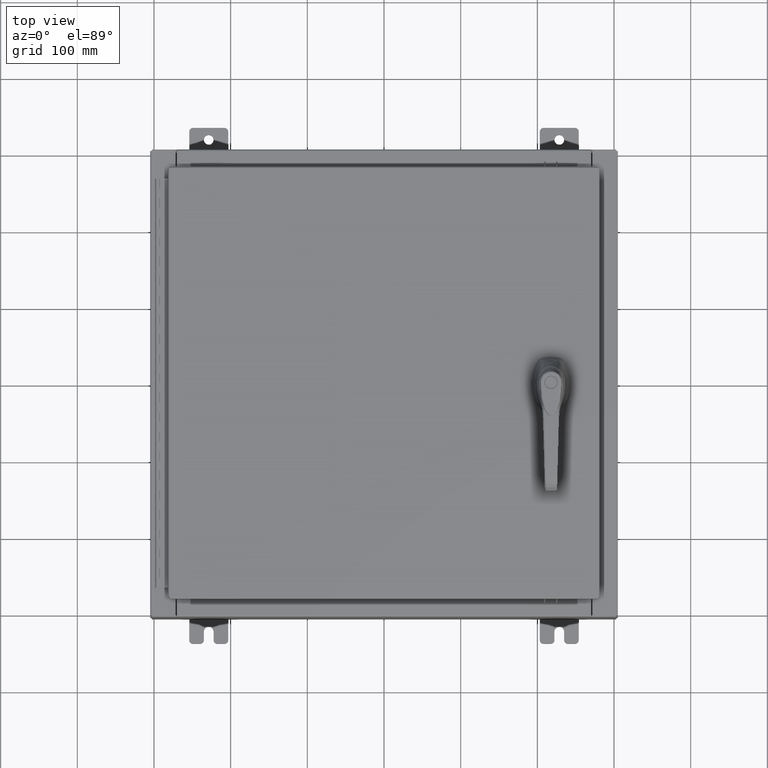
[diagram: clean part render]
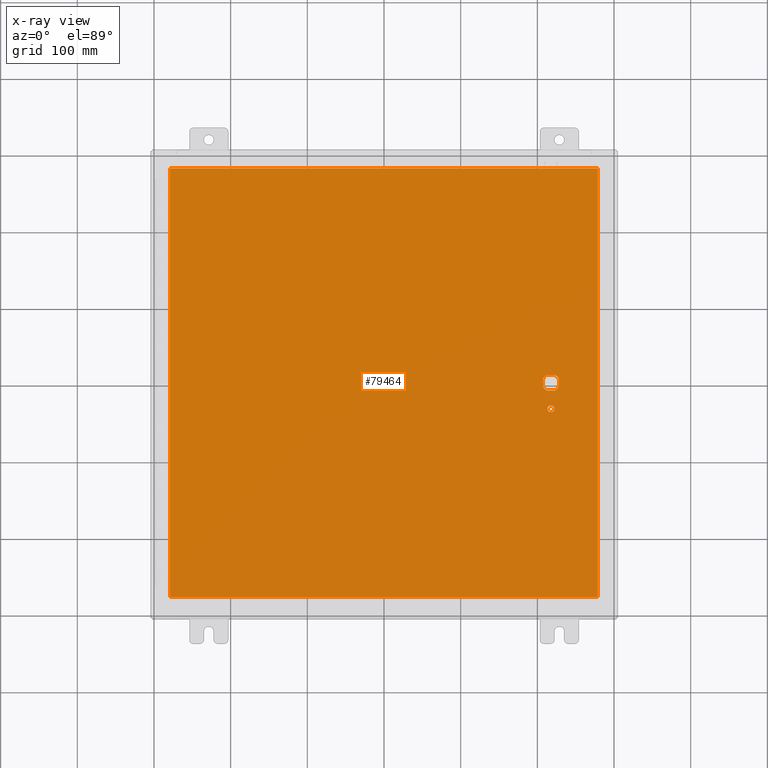
[diagram: x-ray — body ghosted, one internal face saturated and labeled with its STEP entity id]
A machine part, top view, then the same camera in x-ray: the body is ghosted and one INTERNAL B-rep face — a face not visible from any outside direction — is saturated and labeled: STEP entity #79464.
In plain terms, the highlighted planar face has unit normal (0, 0, -1).
Its self-contained STEP definition (entity closure, byte-faithful):
#1363 = CIRCLE ( 'NONE', #89930, 0.1715000000000011500 ) ;
#2174 = AXIS2_PLACEMENT_3D ( 'NONE', #96787, #44281, #105591 ) ;
#3021 = DIRECTION ( 'NONE',  ( -1.000000000000000000, 0.0000000000000000000, 0.0000000000000000000 ) ) ;
#3284 = CARTESIAN_POINT ( 'NONE',  ( 0.0000000000000000000, 0.0000000000000000000, -0.07470000000000000300 ) ) ;
#3557 = CARTESIAN_POINT ( 'NONE',  ( 8.175000000000070000, 0.2002273707563080300, -0.07470000000000003000 ) ) ;
#3602 = DIRECTION ( 'NONE',  ( 1.000000000000000000, 0.0000000000000000000, 0.0000000000000000000 ) ) ;
#4237 = LINE ( 'NONE', #38163, #71463 ) ;
#4667 = EDGE_CURVE ( 'NONE', #100398, #92167, #40274, .T. ) ;
#9254 = DIRECTION ( 'NONE',  ( -0.0000000000000000000, -0.0000000000000000000, 1.000000000000000000 ) ) ;
#9924 = VERTEX_POINT ( 'NONE', #111456 ) ;
#12310 = VECTOR ( 'NONE', #34698, 39.37007874015748100 ) ;
#12706 = CARTESIAN_POINT ( 'NONE',  ( 8.577999999999995900, 0.0000000000000000000, -0.07470000000000003000 ) ) ;
#15179 = AXIS2_PLACEMENT_3D ( 'NONE', #79299, #26757, #88127 ) ;
#15334 = AXIS2_PLACEMENT_3D ( 'NONE', #70950, #18474, #79820 ) ;
#15506 = LINE ( 'NONE', #55528, #59388 ) ;
#15774 = EDGE_CURVE ( 'NONE', #69844, #43508, #4237, .T. ) ;
#17152 = ORIENTED_EDGE ( 'NONE', *, *, #99710, .T. ) ;
#18474 = DIRECTION ( 'NONE',  ( -0.0000000000000000000, -0.0000000000000000000, 1.000000000000000000 ) ) ;
#20132 = LINE ( 'NONE', #36809, #64003 ) ;
#21036 = CARTESIAN_POINT ( 'NONE',  ( 10.99029999999999800, 11.00629999999999600, -0.07470000000000019700 ) ) ;
#21438 = EDGE_CURVE ( 'NONE', #66461, #93129, #98462, .T. ) ;
#21518 = DIRECTION ( 'NONE',  ( -1.000000000000000000, 1.776356839400251300E-015, 0.0000000000000000000 ) ) ;
#22375 = EDGE_CURVE ( 'NONE', #44950, #51767, #20132, .T. ) ;
#22784 = VECTOR ( 'NONE', #39405, 39.37007874015748100 ) ;
#26669 = EDGE_CURVE ( 'NONE', #77998, #58202, #15506, .T. ) ;
#26757 = DIRECTION ( 'NONE',  ( -0.0000000000000000000, -0.0000000000000000000, 1.000000000000000000 ) ) ;
#27270 = CARTESIAN_POINT ( 'NONE',  ( 8.577999999999995900, 0.0000000000000000000, -0.07470000000000003000 ) ) ;
#28232 = CARTESIAN_POINT ( 'NONE',  ( 8.980999999999921700, 0.2002273707563080300, -0.07470000000000003000 ) ) ;
#29776 = PLANE ( 'NONE',  #69955 ) ;
#30705 = ORIENTED_EDGE ( 'NONE', *, *, #26669, .T. ) ;
#31484 = CIRCLE ( 'NONE', #83237, 0.4499999999999156900 ) ;
#31684 = EDGE_CURVE ( 'NONE', #51767, #100398, #50081, .T. ) ;
#34209 = FACE_BOUND ( 'NONE', #82321, .T. ) ;
#34698 = DIRECTION ( 'NONE',  ( 2.728745808672812900E-015, -1.000000000000000000, 0.0000000000000000000 ) ) ;
#36101 = DIRECTION ( 'NONE',  ( -1.000000000000000000, 0.0000000000000000000, 0.0000000000000000000 ) ) ;
#36809 = CARTESIAN_POINT ( 'NONE',  ( -10.99030000000000000, -11.00630000000000100, -0.07470000000000019700 ) ) ;
#37017 = EDGE_CURVE ( 'NONE', #82015, #77301, #82297, .T. ) ;
#38163 = CARTESIAN_POINT ( 'NONE',  ( 0.0000000000000000000, -0.4029999999999252000, -0.07470000000000003000 ) ) ;
#38592 = DIRECTION ( 'NONE',  ( 0.0000000000000000000, 0.0000000000000000000, -1.000000000000000000 ) ) ;
#38791 = EDGE_CURVE ( 'NONE', #43508, #77301, #31484, .T. ) ;
#39405 = DIRECTION ( 'NONE',  ( 0.0000000000000000000, -1.000000000000000000, 0.0000000000000000000 ) ) ;
#40274 = LINE ( 'NONE', #21036, #81437 ) ;
#43508 = VERTEX_POINT ( 'NONE', #98773 ) ;
#43713 = CIRCLE ( 'NONE', #2174, 0.1715000000000011500 ) ;
#43893 = CIRCLE ( 'NONE', #15179, 0.4499999999999156900 ) ;
#44281 = DIRECTION ( 'NONE',  ( -0.0000000000000000000, -0.0000000000000000000, 1.000000000000000000 ) ) ;
#44950 = VERTEX_POINT ( 'NONE', #102664 ) ;
#45984 = ORIENTED_EDGE ( 'NONE', *, *, #37017, .F. ) ;
#46007 = CARTESIAN_POINT ( 'NONE',  ( 10.99029999999999600, 11.00629999999999600, -0.07470000000000000300 ) ) ;
#46154 = LINE ( 'NONE', #66955, #22784 ) ;
#47964 = CARTESIAN_POINT ( 'NONE',  ( 8.778227370756305000, 0.4029999999999250300, -0.07470000000000003000 ) ) ;
#50081 = LINE ( 'NONE', #94289, #52875 ) ;
#51767 = VERTEX_POINT ( 'NONE', #103838 ) ;
#52875 = VECTOR ( 'NONE', #85494, 39.37007874015748100 ) ;
#53767 = ORIENTED_EDGE ( 'NONE', *, *, #83720, .F. ) ;
#55528 = CARTESIAN_POINT ( 'NONE',  ( 0.0000000000000000000, 0.4029999999999252000, -0.07470000000000003000 ) ) ;
#57349 = CARTESIAN_POINT ( 'NONE',  ( 8.377772629243686700, 0.4029999999999252000, -0.07470000000000003000 ) ) ;
#58107 = CARTESIAN_POINT ( 'NONE',  ( 8.749499999999997600, -1.338000000000000100, -0.07470000000000003000 ) ) ;
#58202 = VERTEX_POINT ( 'NONE', #57349 ) ;
#59388 = VECTOR ( 'NONE', #3021, 39.37007874015748100 ) ;
#60198 = FACE_BOUND ( 'NONE', #113657, .T. ) ;
#60201 = ORIENTED_EDGE ( 'NONE', *, *, #68866, .T. ) ;
#61448 = CARTESIAN_POINT ( 'NONE',  ( 8.175000000000070000, 0.0000000000000000000, -0.07470000000000003000 ) ) ;
#61730 = CARTESIAN_POINT ( 'NONE',  ( 8.577999999999995900, -1.338000000000000100, -0.07470000000000003000 ) ) ;
#64003 = VECTOR ( 'NONE', #106526, 39.37007874015748100 ) ;
#64633 = ORIENTED_EDGE ( 'NONE', *, *, #86969, .T. ) ;
#65694 = AXIS2_PLACEMENT_3D ( 'NONE', #27270, #88618, #36101 ) ;
#66461 = VERTEX_POINT ( 'NONE', #3557 ) ;
#66955 = CARTESIAN_POINT ( 'NONE',  ( -10.99030000000000500, 11.00629999999999600, -0.07470000000000133500 ) ) ;
#67642 = EDGE_CURVE ( 'NONE', #83653, #9924, #1363, .T. ) ;
#68866 = EDGE_CURVE ( 'NONE', #82015, #77998, #101301, .T. ) ;
#69747 = CIRCLE ( 'NONE', #15334, 0.4499999999999156900 ) ;
#69844 = VERTEX_POINT ( 'NONE', #110439 ) ;
#69955 = AXIS2_PLACEMENT_3D ( 'NONE', #3284, #38592, #99895 ) ;
#70557 = DIRECTION ( 'NONE',  ( -1.000000000000000000, 0.0000000000000000000, 0.0000000000000000000 ) ) ;
#70890 = CARTESIAN_POINT ( 'NONE',  ( 8.175000000000070000, -0.2002273707563079800, -0.07470000000000003000 ) ) ;
#70950 = CARTESIAN_POINT ( 'NONE',  ( 8.577999999999995900, 0.0000000000000000000, -0.07470000000000003000 ) ) ;
#71463 = VECTOR ( 'NONE', #3602, 39.37007874015748100 ) ;
#74038 = DIRECTION ( 'NONE',  ( -0.0000000000000000000, -0.0000000000000000000, 1.000000000000000000 ) ) ;
#77301 = VERTEX_POINT ( 'NONE', #100746 ) ;
#77998 = VERTEX_POINT ( 'NONE', #47964 ) ;
#78371 = CARTESIAN_POINT ( 'NONE',  ( 8.980999999999921700, 2.450686610769031800E-014, -0.07470000000000003000 ) ) ;
#78373 = ORIENTED_EDGE ( 'NONE', *, *, #15774, .T. ) ;
#79299 = CARTESIAN_POINT ( 'NONE',  ( 8.577999999999995900, 0.0000000000000000000, -0.07470000000000003000 ) ) ;
#79464 = ADVANCED_FACE ( 'NONE', ( #60198, #80797, #34209 ), #29776, .T. ) ;
#79820 = DIRECTION ( 'NONE',  ( -1.000000000000000000, 0.0000000000000000000, 0.0000000000000000000 ) ) ;
#80797 = FACE_OUTER_BOUND ( 'NONE', #89039, .T. ) ;
#81437 = VECTOR ( 'NONE', #108439, 39.37007874015748100 ) ;
#82015 = VERTEX_POINT ( 'NONE', #28232 ) ;
#82297 = LINE ( 'NONE', #78371, #12310 ) ;
#82321 = EDGE_LOOP ( 'NONE', ( #91992, #45984, #60201, #30705, #92809, #104386, #64633, #78373 ) ) ;
#83237 = AXIS2_PLACEMENT_3D ( 'NONE', #12706, #74038, #21518 ) ;
#83653 = VERTEX_POINT ( 'NONE', #58107 ) ;
#83720 = EDGE_CURVE ( 'NONE', #92167, #44950, #46154, .T. ) ;
#85494 = DIRECTION ( 'NONE',  ( 0.0000000000000000000, 1.000000000000000000, 0.0000000000000000000 ) ) ;
#85780 = ORIENTED_EDGE ( 'NONE', *, *, #22375, .F. ) ;
#86969 = EDGE_CURVE ( 'NONE', #93129, #69844, #43893, .T. ) ;
#87963 = DIRECTION ( 'NONE',  ( 0.0000000000000000000, -1.000000000000000000, 0.0000000000000000000 ) ) ;
#88127 = DIRECTION ( 'NONE',  ( -1.000000000000000000, 8.881784197001256300E-016, 0.0000000000000000000 ) ) ;
#88618 = DIRECTION ( 'NONE',  ( -0.0000000000000000000, -0.0000000000000000000, 1.000000000000000000 ) ) ;
#89039 = EDGE_LOOP ( 'NONE', ( #109160, #85780, #53767, #101711 ) ) ;
#89930 = AXIS2_PLACEMENT_3D ( 'NONE', #61730, #9254, #70557 ) ;
#90144 = EDGE_CURVE ( 'NONE', #58202, #66461, #69747, .T. ) ;
#91015 = CARTESIAN_POINT ( 'NONE',  ( -10.99030000000000100, 11.00629999999999600, -0.07470000000000000300 ) ) ;
#91992 = ORIENTED_EDGE ( 'NONE', *, *, #38791, .T. ) ;
#92167 = VERTEX_POINT ( 'NONE', #91015 ) ;
#92809 = ORIENTED_EDGE ( 'NONE', *, *, #90144, .T. ) ;
#93129 = VERTEX_POINT ( 'NONE', #70890 ) ;
#94289 = CARTESIAN_POINT ( 'NONE',  ( 10.99029999999999600, -11.00630000000000100, -0.07470000000000019700 ) ) ;
#94847 = ORIENTED_EDGE ( 'NONE', *, *, #67642, .T. ) ;
#95734 = VECTOR ( 'NONE', #87963, 39.37007874015748100 ) ;
#96787 = CARTESIAN_POINT ( 'NONE',  ( 8.577999999999995900, -1.338000000000000100, -0.07470000000000003000 ) ) ;
#98462 = LINE ( 'NONE', #61448, #95734 ) ;
#98773 = CARTESIAN_POINT ( 'NONE',  ( 8.778227370756305000, -0.4029999999999252000, -0.07470000000000003000 ) ) ;
#99710 = EDGE_CURVE ( 'NONE', #9924, #83653, #43713, .T. ) ;
#99895 = DIRECTION ( 'NONE',  ( -1.000000000000000000, 0.0000000000000000000, -0.0000000000000000000 ) ) ;
#100398 = VERTEX_POINT ( 'NONE', #46007 ) ;
#100746 = CARTESIAN_POINT ( 'NONE',  ( 8.980999999999921700, -0.2002273707563075900, -0.07470000000000003000 ) ) ;
#101301 = CIRCLE ( 'NONE', #65694, 0.4499999999999156900 ) ;
#101711 = ORIENTED_EDGE ( 'NONE', *, *, #4667, .F. ) ;
#102664 = CARTESIAN_POINT ( 'NONE',  ( -10.99030000000000000, -11.00630000000000100, -0.07470000000000000300 ) ) ;
#103838 = CARTESIAN_POINT ( 'NONE',  ( 10.99029999999999600, -11.00630000000000100, -0.07470000000000000300 ) ) ;
#104386 = ORIENTED_EDGE ( 'NONE', *, *, #21438, .T. ) ;
#105591 = DIRECTION ( 'NONE',  ( -1.000000000000000000, 0.0000000000000000000, 0.0000000000000000000 ) ) ;
#106526 = DIRECTION ( 'NONE',  ( 1.000000000000000000, -0.0000000000000000000, -0.0000000000000000000 ) ) ;
#108439 = DIRECTION ( 'NONE',  ( -1.000000000000000000, -0.0000000000000000000, -0.0000000000000000000 ) ) ;
#109160 = ORIENTED_EDGE ( 'NONE', *, *, #31684, .F. ) ;
#110439 = CARTESIAN_POINT ( 'NONE',  ( 8.377772629243686700, -0.4029999999999250300, -0.07470000000000003000 ) ) ;
#111456 = CARTESIAN_POINT ( 'NONE',  ( 8.406499999999994100, -1.338000000000000100, -0.07470000000000003000 ) ) ;
#113657 = EDGE_LOOP ( 'NONE', ( #94847, #17152 ) ) ;